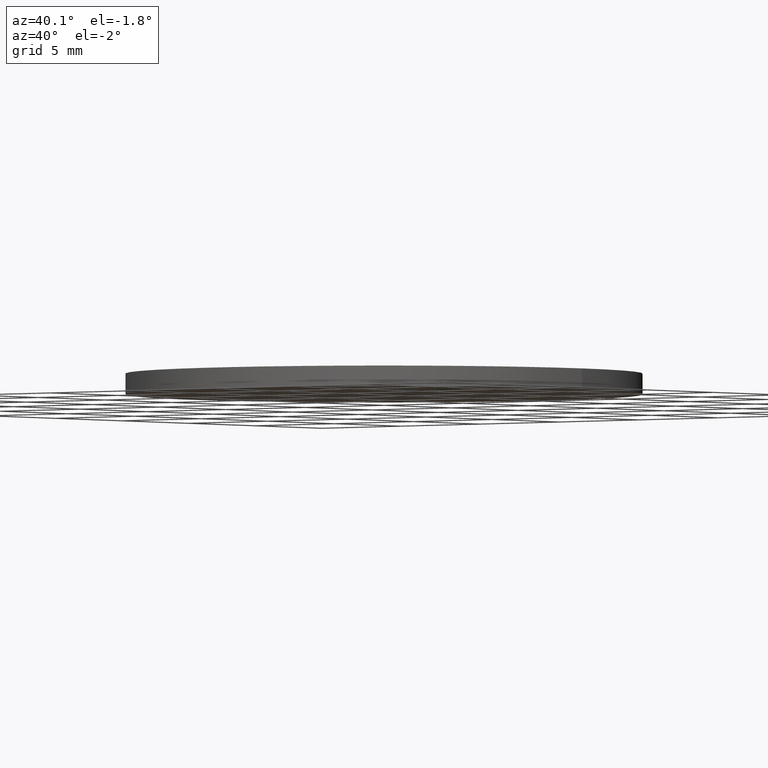
[diagram: clean part render]
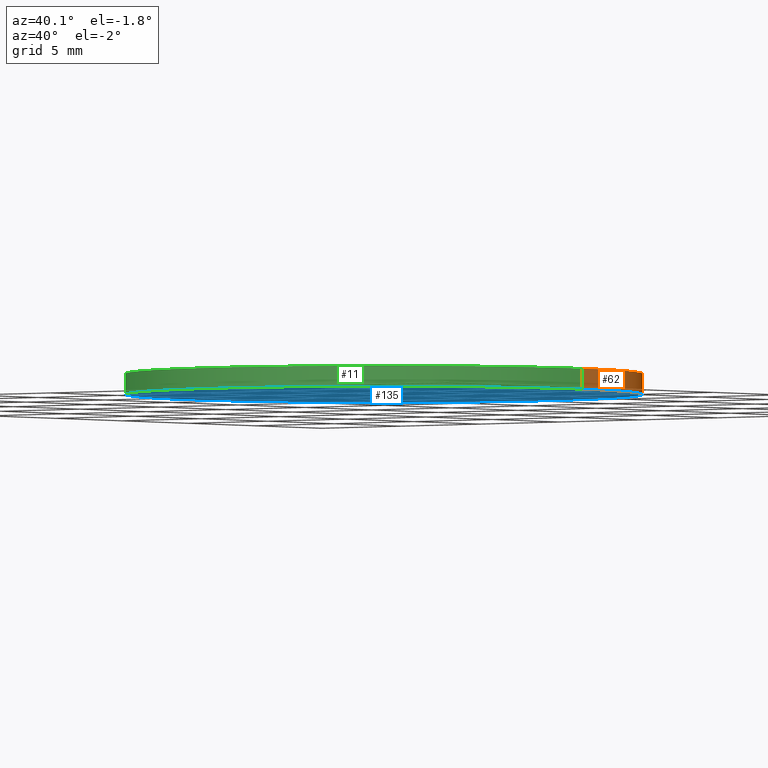
[diagram: same view with three faces highlighted in distinct colors, each labeled with its STEP entity id]
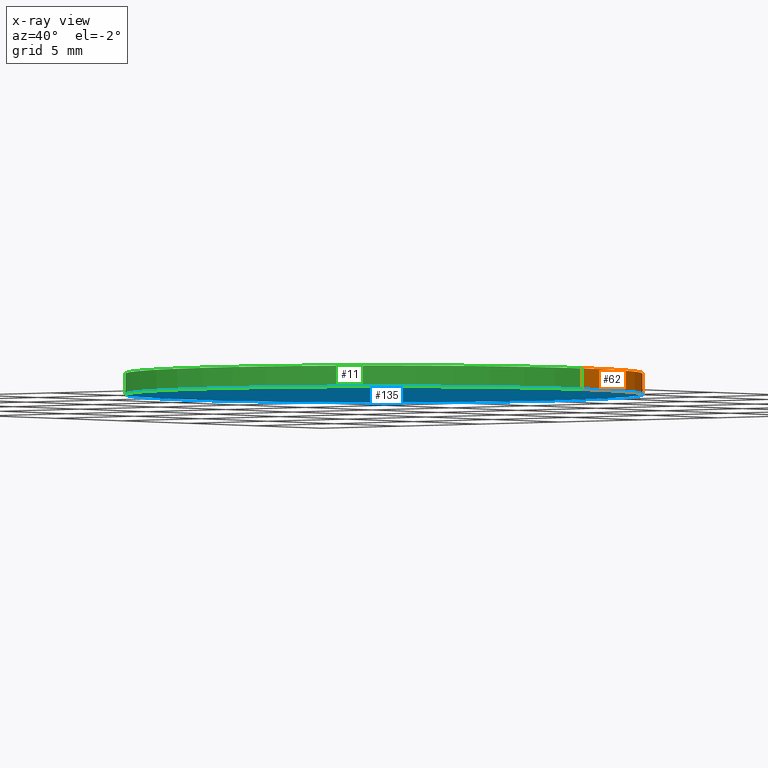
[diagram: x-ray of the same camera — body ghosted, the three highlighted faces saturated]
A machine part, auxiliary view with three faces highlighted in distinct colors.
The next image is the same camera in x-ray (body ghosted, the three faces saturated) — at least one of them is partly hidden behind the body in this view.
Their STEP definitions:

[orange] entity #62 — the highlighted cylindrical surface (partial cylindrical patch) has radius 12.5 mm, axis along (-0, -0, -1).
#2 = ORIENTED_EDGE ( 'NONE', *, *, #40, .T. ) ;
#13 = ORIENTED_EDGE ( 'NONE', *, *, #58, .F. ) ;
#16 = CIRCLE ( 'NONE', #73, 12.50000000000000000 ) ;
#22 = EDGE_LOOP ( 'NONE', ( #106, #31, #2, #13 ) ) ;
#24 = CYLINDRICAL_SURFACE ( 'NONE', #48, 12.50000000000000000 ) ;
#31 = ORIENTED_EDGE ( 'NONE', *, *, #134, .T. ) ;
#36 = EDGE_CURVE ( 'NONE', #41, #71, #16, .T. ) ;
#40 = EDGE_CURVE ( 'NONE', #120, #101, #74, .T. ) ;
#41 = VERTEX_POINT ( 'NONE', #132 ) ;
#45 = LINE ( 'NONE', #76, #52 ) ;
#48 = AXIS2_PLACEMENT_3D ( 'NONE', #125, #96, #94 ) ;
#52 = VECTOR ( 'NONE', #66, 1000.000000000000000 ) ;
#58 = EDGE_CURVE ( 'NONE', #71, #101, #103, .T. ) ;
#62 = ADVANCED_FACE ( 'NONE', ( #109 ), #24, .T. ) ;
#66 = DIRECTION ( 'NONE',  ( -0.0000000000000000000, -0.0000000000000000000, -1.000000000000000000 ) ) ;
#67 = CARTESIAN_POINT ( 'NONE',  ( 12.50000000000000000, 1.530808498934191500E-015, 0.0000000000000000000 ) ) ;
#71 = VERTEX_POINT ( 'NONE', #84 ) ;
#73 = AXIS2_PLACEMENT_3D ( 'NONE', #105, #102, #97 ) ;
#74 = CIRCLE ( 'NONE', #75, 12.50000000000000000 ) ;
#75 = AXIS2_PLACEMENT_3D ( 'NONE', #88, #85, #104 ) ;
#76 = CARTESIAN_POINT ( 'NONE',  ( 12.50000000000000000, 1.530808498934191500E-015, 1.000000000000000000 ) ) ;
#78 = DIRECTION ( 'NONE',  ( -0.0000000000000000000, -0.0000000000000000000, -1.000000000000000000 ) ) ;
#83 = CARTESIAN_POINT ( 'NONE',  ( -12.50000000000000000, 0.0000000000000000000, 0.0000000000000000000 ) ) ;
#84 = CARTESIAN_POINT ( 'NONE',  ( -12.50000000000000000, 0.0000000000000000000, 1.000000000000000000 ) ) ;
#85 = DIRECTION ( 'NONE',  ( 0.0000000000000000000, 0.0000000000000000000, 1.000000000000000000 ) ) ;
#88 = CARTESIAN_POINT ( 'NONE',  ( 0.0000000000000000000, 0.0000000000000000000, 0.0000000000000000000 ) ) ;
#94 = DIRECTION ( 'NONE',  ( -1.000000000000000000, 0.0000000000000000000, 0.0000000000000000000 ) ) ;
#96 = DIRECTION ( 'NONE',  ( -0.0000000000000000000, -0.0000000000000000000, -1.000000000000000000 ) ) ;
#97 = DIRECTION ( 'NONE',  ( 1.000000000000000000, 0.0000000000000000000, 0.0000000000000000000 ) ) ;
#100 = VECTOR ( 'NONE', #78, 1000.000000000000000 ) ;
#101 = VERTEX_POINT ( 'NONE', #83 ) ;
#102 = DIRECTION ( 'NONE',  ( 0.0000000000000000000, 0.0000000000000000000, 1.000000000000000000 ) ) ;
#103 = LINE ( 'NONE', #113, #100 ) ;
#104 = DIRECTION ( 'NONE',  ( 1.000000000000000000, 0.0000000000000000000, 0.0000000000000000000 ) ) ;
#105 = CARTESIAN_POINT ( 'NONE',  ( 0.0000000000000000000, 0.0000000000000000000, 1.000000000000000000 ) ) ;
#106 = ORIENTED_EDGE ( 'NONE', *, *, #36, .F. ) ;
#109 = FACE_OUTER_BOUND ( 'NONE', #22, .T. ) ;
#113 = CARTESIAN_POINT ( 'NONE',  ( -12.50000000000000000, 0.0000000000000000000, 1.000000000000000000 ) ) ;
#120 = VERTEX_POINT ( 'NONE', #67 ) ;
#125 = CARTESIAN_POINT ( 'NONE',  ( 0.0000000000000000000, 0.0000000000000000000, 1.000000000000000000 ) ) ;
#132 = CARTESIAN_POINT ( 'NONE',  ( 12.50000000000000000, 1.530808498934191500E-015, 1.000000000000000000 ) ) ;
#134 = EDGE_CURVE ( 'NONE', #41, #120, #45, .T. ) ;

[blue] entity #135 — the highlighted planar face has unit normal (0, 0, 1).
#15 = DIRECTION ( 'NONE',  ( 0.0000000000000000000, 0.0000000000000000000, 1.000000000000000000 ) ) ;
#19 = DIRECTION ( 'NONE',  ( 0.0000000000000000000, 0.0000000000000000000, 1.000000000000000000 ) ) ;
#20 = DIRECTION ( 'NONE',  ( 1.000000000000000000, 0.0000000000000000000, -0.0000000000000000000 ) ) ;
#32 = EDGE_CURVE ( 'NONE', #101, #120, #129, .T. ) ;
#33 = EDGE_LOOP ( 'NONE', ( #95, #63 ) ) ;
#35 = AXIS2_PLACEMENT_3D ( 'NONE', #130, #15, #37 ) ;
#37 = DIRECTION ( 'NONE',  ( 1.000000000000000000, 0.0000000000000000000, 0.0000000000000000000 ) ) ;
#40 = EDGE_CURVE ( 'NONE', #120, #101, #74, .T. ) ;
#61 = PLANE ( 'NONE',  #93 ) ;
#63 = ORIENTED_EDGE ( 'NONE', *, *, #40, .F. ) ;
#67 = CARTESIAN_POINT ( 'NONE',  ( 12.50000000000000000, 1.530808498934191500E-015, 0.0000000000000000000 ) ) ;
#74 = CIRCLE ( 'NONE', #75, 12.50000000000000000 ) ;
#75 = AXIS2_PLACEMENT_3D ( 'NONE', #88, #85, #104 ) ;
#82 = FACE_OUTER_BOUND ( 'NONE', #33, .T. ) ;
#83 = CARTESIAN_POINT ( 'NONE',  ( -12.50000000000000000, 0.0000000000000000000, 0.0000000000000000000 ) ) ;
#85 = DIRECTION ( 'NONE',  ( 0.0000000000000000000, 0.0000000000000000000, 1.000000000000000000 ) ) ;
#87 = CARTESIAN_POINT ( 'NONE',  ( 0.0000000000000000000, 0.0000000000000000000, 0.0000000000000000000 ) ) ;
#88 = CARTESIAN_POINT ( 'NONE',  ( 0.0000000000000000000, 0.0000000000000000000, 0.0000000000000000000 ) ) ;
#93 = AXIS2_PLACEMENT_3D ( 'NONE', #87, #19, #20 ) ;
#95 = ORIENTED_EDGE ( 'NONE', *, *, #32, .F. ) ;
#101 = VERTEX_POINT ( 'NONE', #83 ) ;
#104 = DIRECTION ( 'NONE',  ( 1.000000000000000000, 0.0000000000000000000, 0.0000000000000000000 ) ) ;
#120 = VERTEX_POINT ( 'NONE', #67 ) ;
#129 = CIRCLE ( 'NONE', #35, 12.50000000000000000 ) ;
#130 = CARTESIAN_POINT ( 'NONE',  ( 0.0000000000000000000, 0.0000000000000000000, 0.0000000000000000000 ) ) ;
#135 = ADVANCED_FACE ( 'NONE', ( #82 ), #61, .F. ) ;

[green] entity #11 — the highlighted cylindrical surface (partial cylindrical patch) has radius 12.5 mm, axis along (-0, -0, -1).
#7 = DIRECTION ( 'NONE',  ( -0.0000000000000000000, -0.0000000000000000000, -1.000000000000000000 ) ) ;
#11 = ADVANCED_FACE ( 'NONE', ( #124 ), #42, .T. ) ;
#15 = DIRECTION ( 'NONE',  ( 0.0000000000000000000, 0.0000000000000000000, 1.000000000000000000 ) ) ;
#32 = EDGE_CURVE ( 'NONE', #101, #120, #129, .T. ) ;
#34 = ORIENTED_EDGE ( 'NONE', *, *, #134, .F. ) ;
#35 = AXIS2_PLACEMENT_3D ( 'NONE', #130, #15, #37 ) ;
#37 = DIRECTION ( 'NONE',  ( 1.000000000000000000, 0.0000000000000000000, 0.0000000000000000000 ) ) ;
#38 = AXIS2_PLACEMENT_3D ( 'NONE', #39, #51, #138 ) ;
#39 = CARTESIAN_POINT ( 'NONE',  ( 0.0000000000000000000, 0.0000000000000000000, 1.000000000000000000 ) ) ;
#41 = VERTEX_POINT ( 'NONE', #132 ) ;
#42 = CYLINDRICAL_SURFACE ( 'NONE', #56, 12.50000000000000000 ) ;
#43 = EDGE_LOOP ( 'NONE', ( #34, #126, #91, #117 ) ) ;
#45 = LINE ( 'NONE', #76, #52 ) ;
#51 = DIRECTION ( 'NONE',  ( 0.0000000000000000000, 0.0000000000000000000, 1.000000000000000000 ) ) ;
#52 = VECTOR ( 'NONE', #66, 1000.000000000000000 ) ;
#56 = AXIS2_PLACEMENT_3D ( 'NONE', #111, #7, #60 ) ;
#58 = EDGE_CURVE ( 'NONE', #71, #101, #103, .T. ) ;
#60 = DIRECTION ( 'NONE',  ( -1.000000000000000000, 0.0000000000000000000, 0.0000000000000000000 ) ) ;
#66 = DIRECTION ( 'NONE',  ( -0.0000000000000000000, -0.0000000000000000000, -1.000000000000000000 ) ) ;
#67 = CARTESIAN_POINT ( 'NONE',  ( 12.50000000000000000, 1.530808498934191500E-015, 0.0000000000000000000 ) ) ;
#68 = EDGE_CURVE ( 'NONE', #71, #41, #81, .T. ) ;
#71 = VERTEX_POINT ( 'NONE', #84 ) ;
#76 = CARTESIAN_POINT ( 'NONE',  ( 12.50000000000000000, 1.530808498934191500E-015, 1.000000000000000000 ) ) ;
#78 = DIRECTION ( 'NONE',  ( -0.0000000000000000000, -0.0000000000000000000, -1.000000000000000000 ) ) ;
#81 = CIRCLE ( 'NONE', #38, 12.50000000000000000 ) ;
#83 = CARTESIAN_POINT ( 'NONE',  ( -12.50000000000000000, 0.0000000000000000000, 0.0000000000000000000 ) ) ;
#84 = CARTESIAN_POINT ( 'NONE',  ( -12.50000000000000000, 0.0000000000000000000, 1.000000000000000000 ) ) ;
#91 = ORIENTED_EDGE ( 'NONE', *, *, #58, .T. ) ;
#100 = VECTOR ( 'NONE', #78, 1000.000000000000000 ) ;
#101 = VERTEX_POINT ( 'NONE', #83 ) ;
#103 = LINE ( 'NONE', #113, #100 ) ;
#111 = CARTESIAN_POINT ( 'NONE',  ( 0.0000000000000000000, 0.0000000000000000000, 1.000000000000000000 ) ) ;
#113 = CARTESIAN_POINT ( 'NONE',  ( -12.50000000000000000, 0.0000000000000000000, 1.000000000000000000 ) ) ;
#117 = ORIENTED_EDGE ( 'NONE', *, *, #32, .T. ) ;
#120 = VERTEX_POINT ( 'NONE', #67 ) ;
#124 = FACE_OUTER_BOUND ( 'NONE', #43, .T. ) ;
#126 = ORIENTED_EDGE ( 'NONE', *, *, #68, .F. ) ;
#129 = CIRCLE ( 'NONE', #35, 12.50000000000000000 ) ;
#130 = CARTESIAN_POINT ( 'NONE',  ( 0.0000000000000000000, 0.0000000000000000000, 0.0000000000000000000 ) ) ;
#132 = CARTESIAN_POINT ( 'NONE',  ( 12.50000000000000000, 1.530808498934191500E-015, 1.000000000000000000 ) ) ;
#134 = EDGE_CURVE ( 'NONE', #41, #120, #45, .T. ) ;
#138 = DIRECTION ( 'NONE',  ( 1.000000000000000000, 0.0000000000000000000, 0.0000000000000000000 ) ) ;